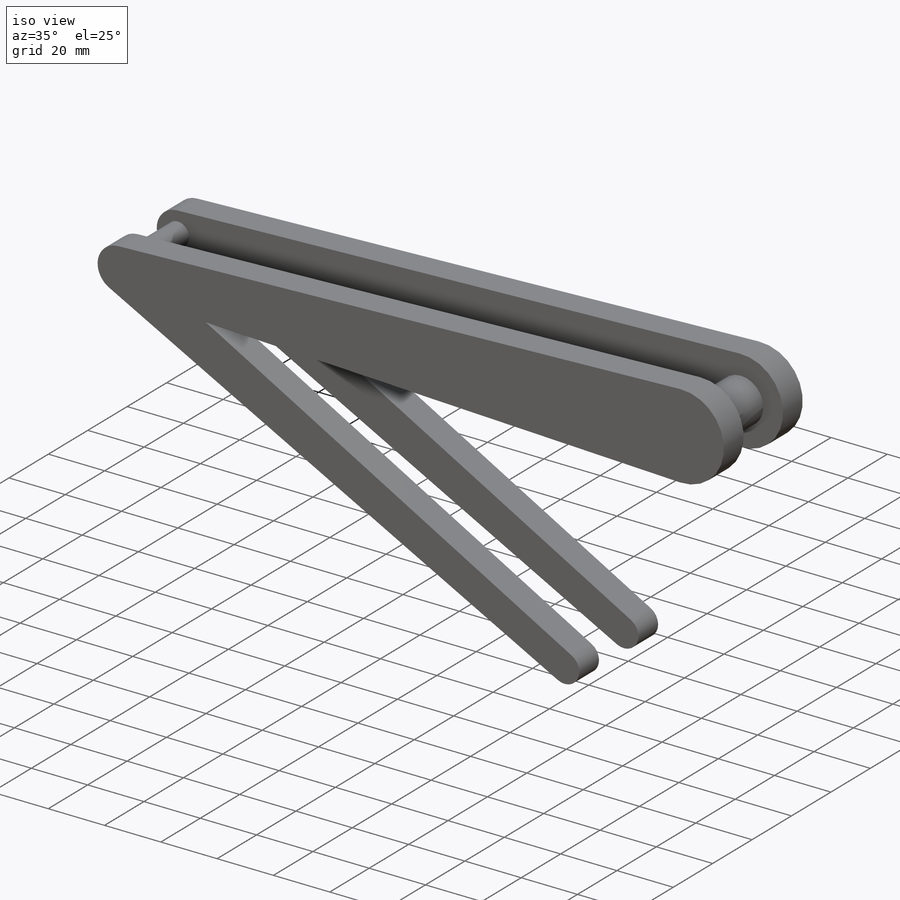
[diagram: iso view]
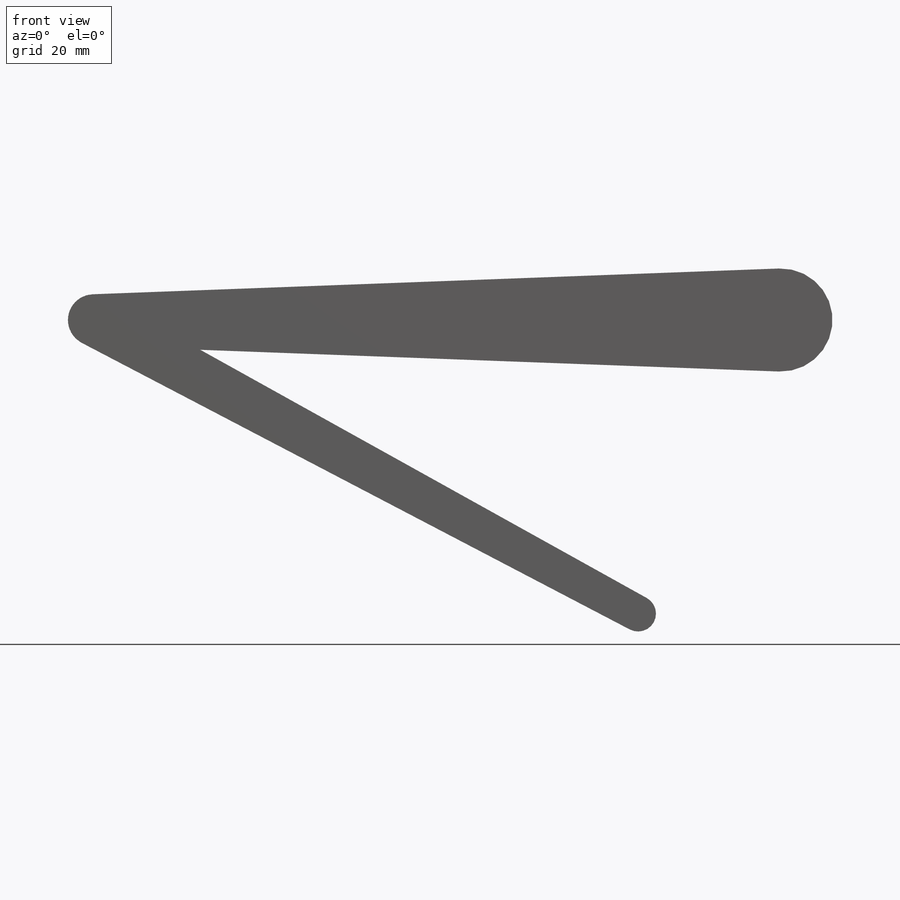
[diagram: front view]
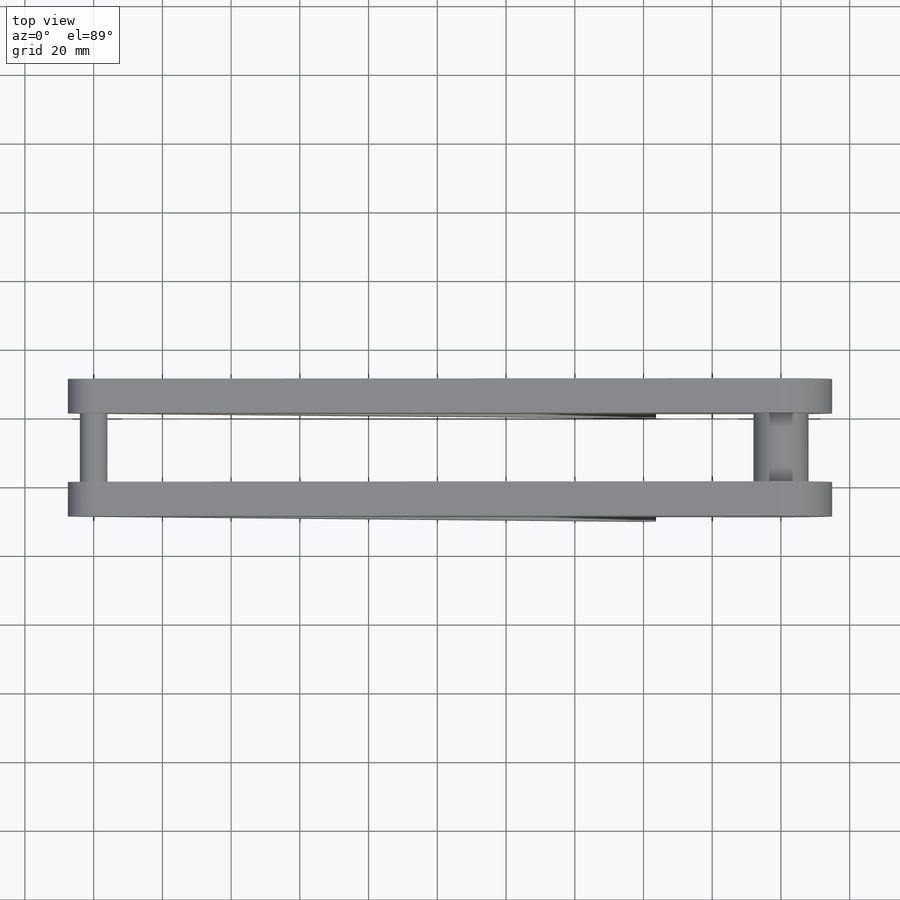
[diagram: top view]
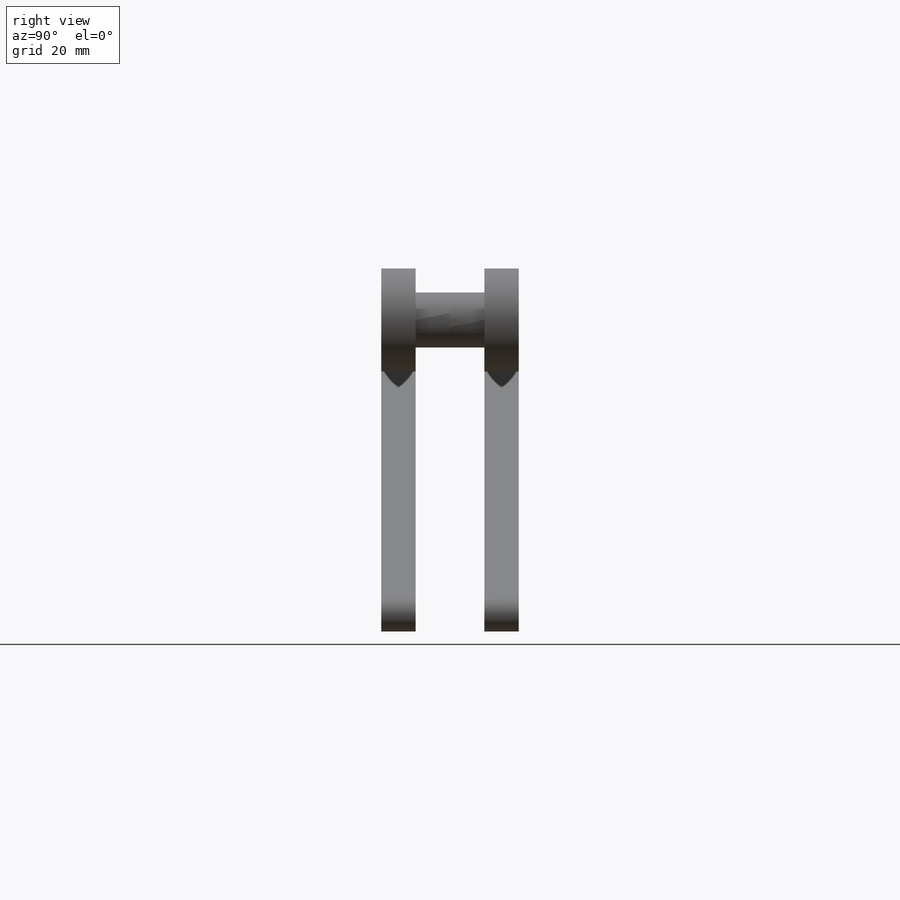
[diagram: right view]
SOLIDWORKS PART (.sldprt)
format: sldprt  version: not decoded by parser v0  size: 272,896 bytes
history: native  units: mm
features: sketch x5, extrude x4, material x1, cut_extrude x1, mirror x1 (+12 scaffold rows collapsed)
feature tree (24):
  scaffold x12  (default folders/planes/origin — collapsed)
  material  "Material <not specified>"
  sketch  "Sketch1"  dims[c1.D1=30.0mm c1.D2=15.0mm c1.D4=10.0mm c1.D3=200.0mm c2.D4=180.0mm c2.D5=200.0mm c3.D5=~28.338229deg]
  extrude  "Boss-Extrude1"  Depth=10mm
  extrude  "Boss-Extrude2"  [1 undecoded]
  sketch  "Sketch1<3>"  dims[D1=10.0mm]
  sketch  "Sketch2"  dims[D1=4.0mm]
  extrude  "Boss-Extrude3"  Depth=10mm
  sketch  "Sketch3"  dims[D1=~3.448118mm]
  extrude  "Boss-Extrude4"  Depth=10mm
  sketch  "Sketch4"  dims[D1=0.0mm]
  cut_extrude  "Cut-Extrude1"  Depth=70mm
  mirror  "Mirror1"
decode coverage: 9 of 11 modeling features carry decoded parameters
note: ~ marks probable driven/reference dimensions
note: 1 parameter value undecoded
note: suppression state not decoded; provenance and decode notes live in map.json
